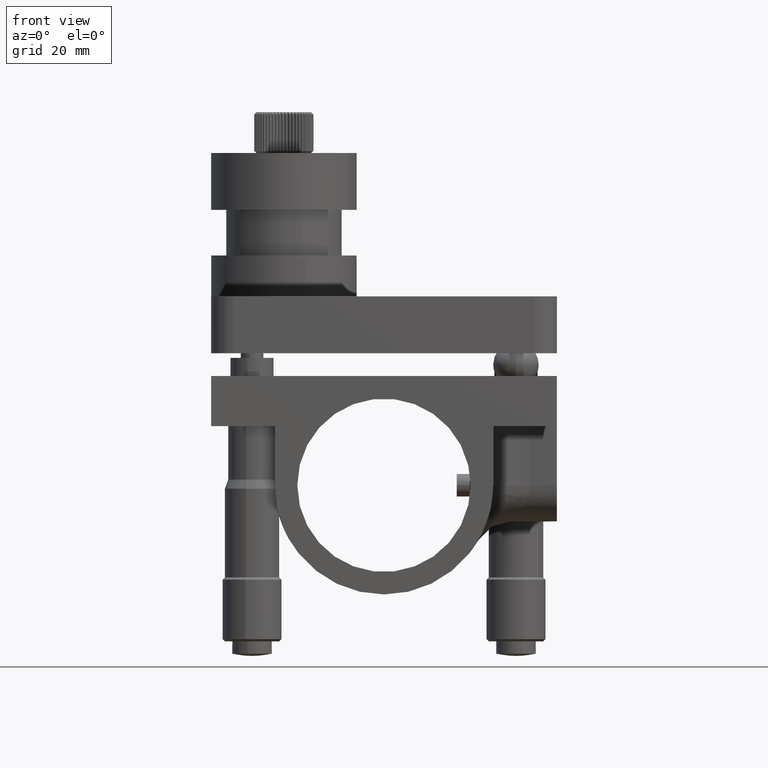
[diagram: clean part render]
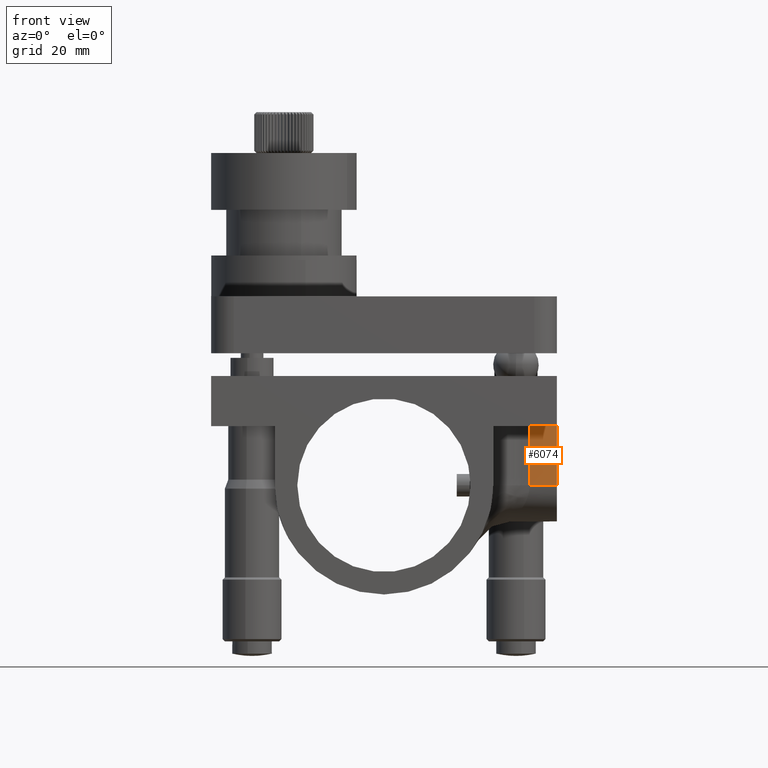
[diagram: same view with one face highlighted and labeled with its STEP entity id]
A machine part, front view. The second image highlights one B-rep face of the part: STEP entity #6074.
In plain terms, the highlighted planar face has unit normal (0, -1, 0).
Its self-contained STEP definition (entity closure, byte-faithful):
#468 = VECTOR ( 'NONE', #11022, 1000.000000000000000 ) ;
#551 = VERTEX_POINT ( 'NONE', #8582 ) ;
#617 = DIRECTION ( 'NONE',  ( 1.000000000000000000, 3.356086344444792600E-016, 1.025412375725086200E-017 ) ) ;
#937 = CARTESIAN_POINT ( 'NONE',  ( -38.00099999999992000, 263.9999999999996000, 3.816391647148975600E-014 ) ) ;
#1024 = DIRECTION ( 'NONE',  ( 3.356086344444792600E-016, -1.000000000000000000, 1.725221376346992100E-016 ) ) ;
#1277 = VECTOR ( 'NONE', #617, 1000.000000000000000 ) ;
#1289 = VECTOR ( 'NONE', #9649, 1000.000000000000000 ) ;
#1627 = DIRECTION ( 'NONE',  ( 1.000000000000000000, 3.356086344444792600E-016, 1.025412375725086200E-017 ) ) ;
#1996 = CARTESIAN_POINT ( 'NONE',  ( 32.00000000000010700, 264.0000000000001100, 3.816391647148975600E-014 ) ) ;
#2089 = VERTEX_POINT ( 'NONE', #11714 ) ;
#2119 = LINE ( 'NONE', #1996, #1289 ) ;
#2722 = VECTOR ( 'NONE', #1627, 1000.000000000000000 ) ;
#2854 = ORIENTED_EDGE ( 'NONE', *, *, #3769, .F. ) ;
#3007 = VERTEX_POINT ( 'NONE', #7470 ) ;
#3769 = EDGE_CURVE ( 'NONE', #12337, #3007, #8408, .T. ) ;
#3840 = EDGE_LOOP ( 'NONE', ( #7372, #7881, #9044, #2854 ) ) ;
#3846 = DIRECTION ( 'NONE',  ( -1.000000000000000000, -3.356086344444792600E-016, -1.025412375725086200E-017 ) ) ;
#5449 = EDGE_CURVE ( 'NONE', #551, #2089, #2119, .T. ) ;
#5773 = PLANE ( 'NONE',  #5790 ) ;
#5790 = AXIS2_PLACEMENT_3D ( 'NONE', #937, #1024, #3846 ) ;
#5885 = LINE ( 'NONE', #8311, #1277 ) ;
#6074 = ADVANCED_FACE ( 'NONE', ( #7252 ), #5773, .T. ) ;
#6132 = EDGE_CURVE ( 'NONE', #2089, #3007, #5885, .T. ) ;
#6624 = LINE ( 'NONE', #10274, #2722 ) ;
#7252 = FACE_OUTER_BOUND ( 'NONE', #3840, .T. ) ;
#7372 = ORIENTED_EDGE ( 'NONE', *, *, #7503, .F. ) ;
#7470 = CARTESIAN_POINT ( 'NONE',  ( 38.00000000000008500, 264.0000000000001100, 3.816391647148975600E-014 ) ) ;
#7503 = EDGE_CURVE ( 'NONE', #551, #12337, #6624, .T. ) ;
#7881 = ORIENTED_EDGE ( 'NONE', *, *, #5449, .T. ) ;
#8311 = CARTESIAN_POINT ( 'NONE',  ( -38.00099999999992000, 263.9999999999996000, 3.816391647148975600E-014 ) ) ;
#8408 = LINE ( 'NONE', #10059, #468 ) ;
#8555 = CARTESIAN_POINT ( 'NONE',  ( 38.00000000000007100, 264.0000000000001100, 13.00000000000000700 ) ) ;
#8582 = CARTESIAN_POINT ( 'NONE',  ( 32.00000000000007800, 264.0000000000001100, 13.00000000000000400 ) ) ;
#9044 = ORIENTED_EDGE ( 'NONE', *, *, #6132, .T. ) ;
#9649 = DIRECTION ( 'NONE',  ( -1.025412375725082900E-017, -1.320038492901063100E-016, -1.000000000000000000 ) ) ;
#10059 = CARTESIAN_POINT ( 'NONE',  ( 38.00000000000008500, 264.0000000000001100, 3.816391647148975600E-014 ) ) ;
#10274 = CARTESIAN_POINT ( 'NONE',  ( -38.00099999999992000, 263.9999999999996000, 13.00000000000000000 ) ) ;
#11022 = DIRECTION ( 'NONE',  ( -1.025412375725082900E-017, -1.320038492901063100E-016, -1.000000000000000000 ) ) ;
#11714 = CARTESIAN_POINT ( 'NONE',  ( 32.00000000000010700, 264.0000000000001100, 3.816391647148975600E-014 ) ) ;
#12337 = VERTEX_POINT ( 'NONE', #8555 ) ;